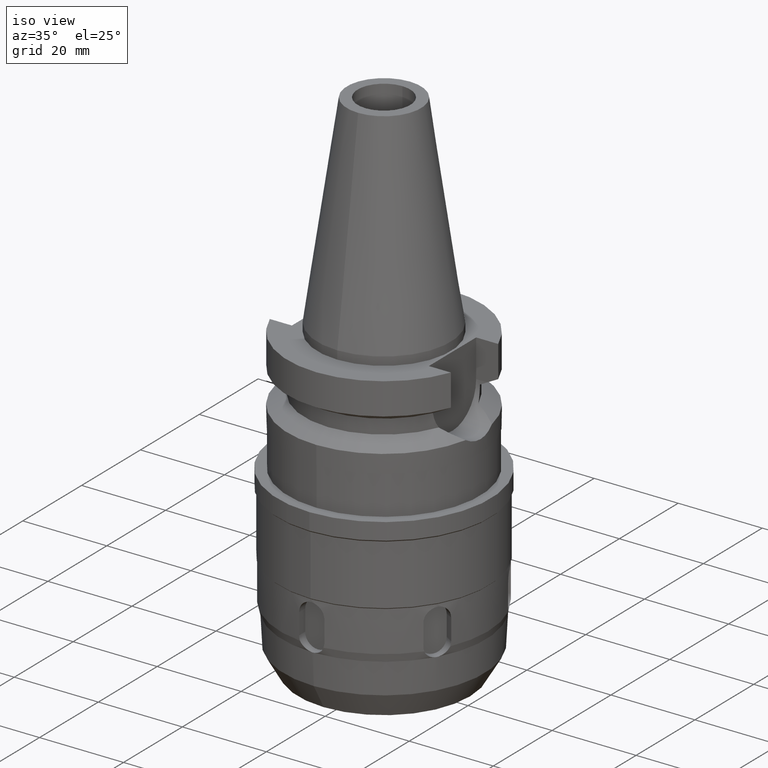
[diagram: clean part render]
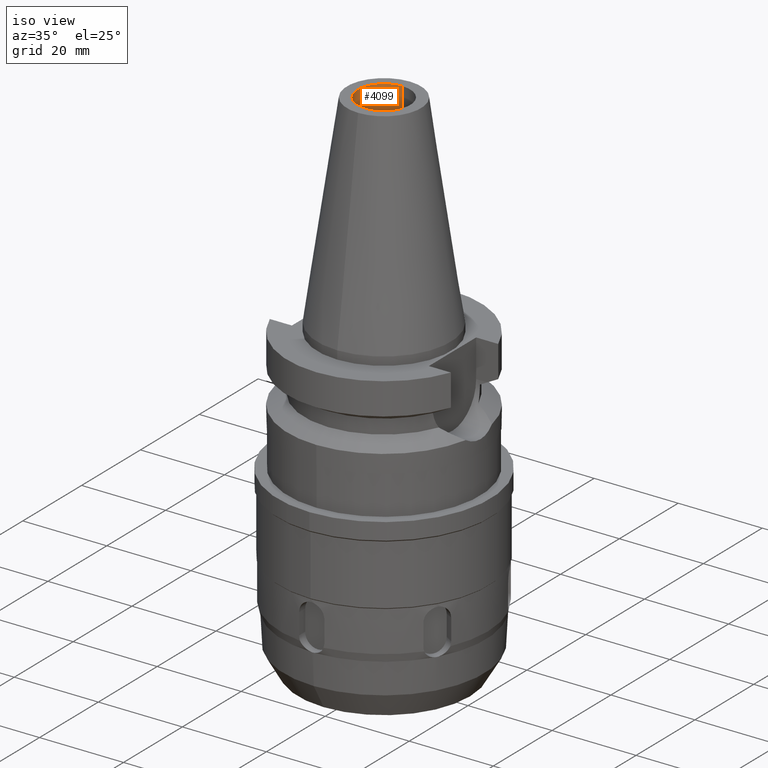
[diagram: same view with one face highlighted and labeled with its STEP entity id]
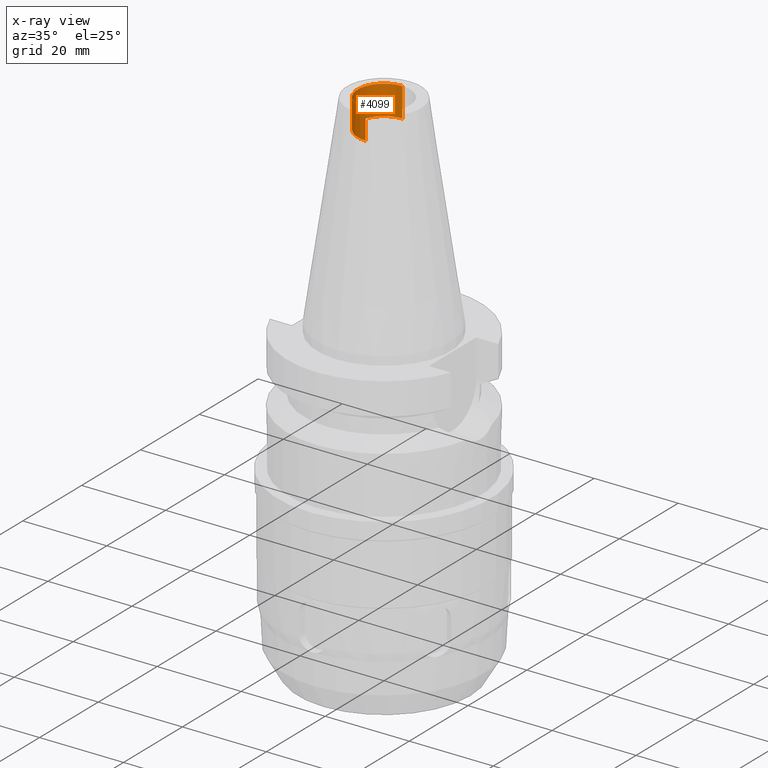
[diagram: x-ray of the same camera — body ghosted, the highlighted face saturated]
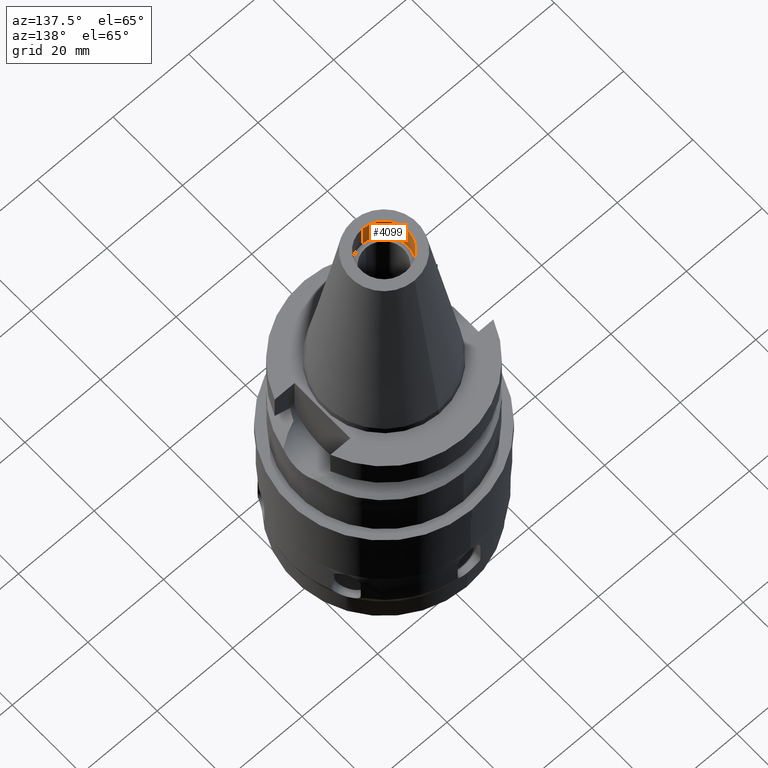
[diagram: same view with one face highlighted and labeled with its STEP entity id]
A machine part, iso view. The second image highlights one B-rep face of the part: STEP entity #4099.
The next image is the same camera in x-ray: the body ghosted, the highlighted face saturated — about 1% of this face is hidden behind the body in this view.
A second angle (auxiliary view) of the same face is appended — the face is thin or edge-on in the first view.
In plain terms, the highlighted cylindrical surface (edge-blend (fillet) strip) has radius 6.25 mm, axis along (0, 0, -1).
Its self-contained STEP definition (entity closure, byte-faithful):
#42=CARTESIAN_POINT('',(0.E0,0.E0,4.84E1));
#43=DIRECTION('',(0.E0,0.E0,1.E0));
#44=DIRECTION('',(0.E0,1.E0,0.E0));
#45=AXIS2_PLACEMENT_3D('',#42,#43,#44);
#2119=CARTESIAN_POINT('',(0.E0,0.E0,4.14E1));
#2120=DIRECTION('',(0.E0,0.E0,-1.E0));
#2121=DIRECTION('',(0.E0,-1.E0,0.E0));
#2122=AXIS2_PLACEMENT_3D('',#2119,#2120,#2121);
#2151=DIRECTION('',(0.E0,0.E0,1.E0));
#2152=VECTOR('',#2151,7.E0);
#2153=CARTESIAN_POINT('',(0.E0,-6.25E0,4.14E1));
#2154=LINE('',#2153,#2152);
#2158=DIRECTION('',(0.E0,0.E0,1.E0));
#2159=VECTOR('',#2158,7.E0);
#2160=CARTESIAN_POINT('',(0.E0,6.25E0,4.14E1));
#2161=LINE('',#2160,#2159);
#2309=CARTESIAN_POINT('',(0.E0,-6.25E0,4.84E1));
#2310=CARTESIAN_POINT('',(0.E0,6.25E0,4.84E1));
#2311=VERTEX_POINT('',#2309);
#2312=VERTEX_POINT('',#2310);
#2313=CARTESIAN_POINT('',(0.E0,6.25E0,4.14E1));
#2314=VERTEX_POINT('',#2313);
#2315=CARTESIAN_POINT('',(0.E0,-6.25E0,4.14E1));
#2316=VERTEX_POINT('',#2315);
#4086=CARTESIAN_POINT('',(0.E0,0.E0,5.457E1));
#4087=DIRECTION('',(0.E0,0.E0,-1.E0));
#4088=DIRECTION('',(0.E0,-1.E0,0.E0));
#4089=AXIS2_PLACEMENT_3D('',#4086,#4087,#4088);
#4090=CYLINDRICAL_SURFACE('',#4089,6.25E0);
#4092=ORIENTED_EDGE('',*,*,#4091,.F.);
#4093=ORIENTED_EDGE('',*,*,#4075,.F.);
#4095=ORIENTED_EDGE('',*,*,#4094,.T.);
#4096=ORIENTED_EDGE('',*,*,#2638,.F.);
#4097=EDGE_LOOP('',(#4092,#4093,#4095,#4096));
#4098=FACE_OUTER_BOUND('',#4097,.F.);
#46=CIRCLE('',#45,6.25E0);
#2123=CIRCLE('',#2122,6.25E0);
#2638=EDGE_CURVE('',#2312,#2311,#46,.T.);
#4075=EDGE_CURVE('',#2316,#2314,#2123,.T.);
#4091=EDGE_CURVE('',#2314,#2312,#2161,.T.);
#4094=EDGE_CURVE('',#2316,#2311,#2154,.T.);
#4099=ADVANCED_FACE('',(#4098),#4090,.F.);